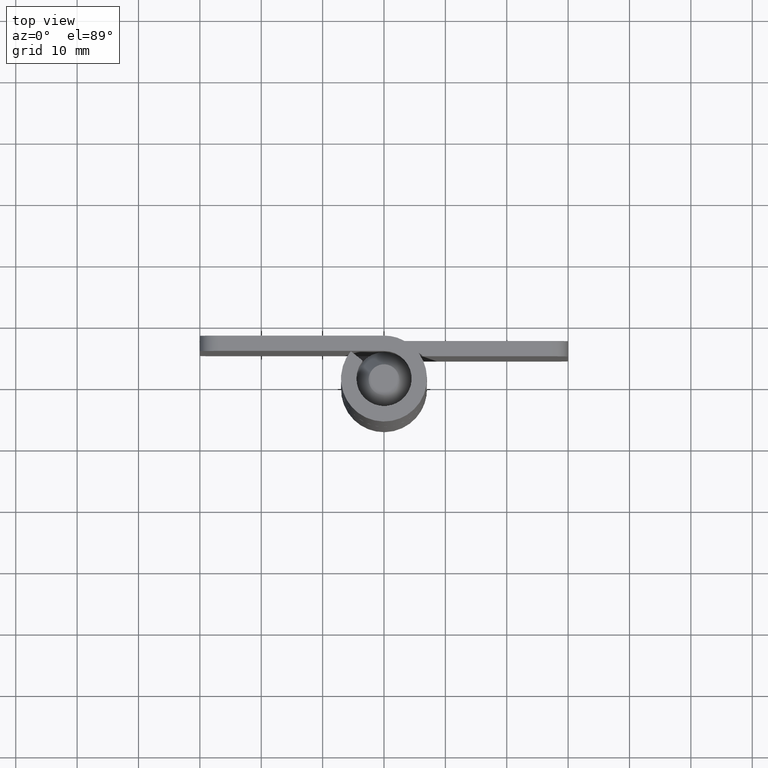
[diagram: clean part render]
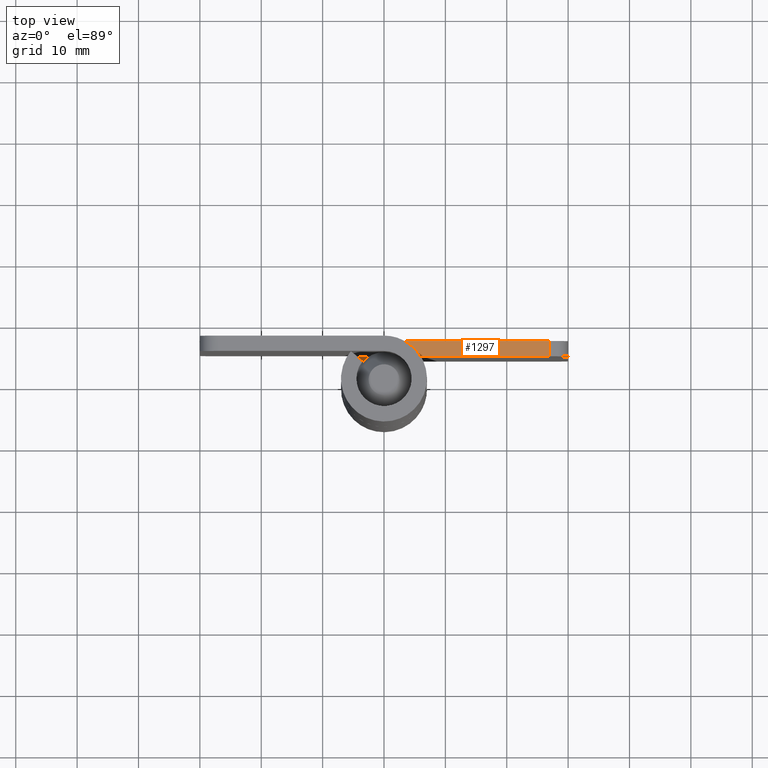
[diagram: same view with one face highlighted and labeled with its STEP entity id]
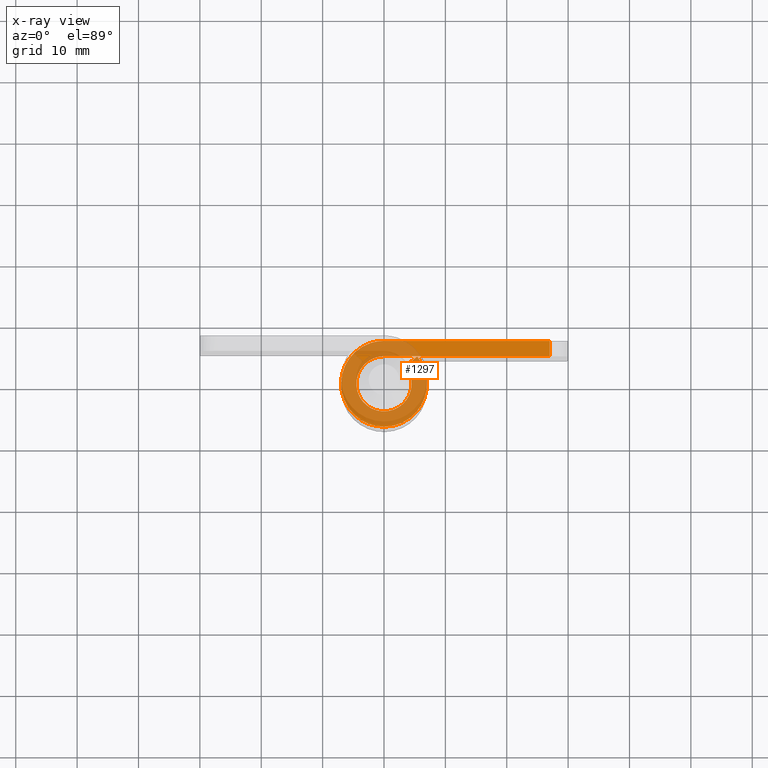
[diagram: x-ray of the same camera — body ghosted, the highlighted face saturated]
A machine part, top view. The second image highlights one B-rep face of the part: STEP entity #1297.
The next image is the same camera in x-ray: the body ghosted, the highlighted face saturated — about 59% of this face is hidden behind the body in this view.
In plain terms, the highlighted face is a freeform B-spline surface patch.
Its self-contained STEP definition (entity closure, byte-faithful):
#1050=CARTESIAN_POINT('',(27.0,7.0,50.0));
#1051=VERTEX_POINT('',#1050);
#1067=CARTESIAN_POINT('',(27.0,4.500000000000000,50.0));
#1068=VERTEX_POINT('',#1067);
#1069=CARTESIAN_POINT('',(27.0,4.500000000000000,50.0));
#1070=CARTESIAN_POINT('',(27.0,7.0,50.0));
#1071=QUASI_UNIFORM_CURVE('',1,(#1069,#1070),.UNSPECIFIED.,.F.,.U.);
#1072=EDGE_CURVE('',#1068,#1051,#1071,.T.);
#1228=CARTESIAN_POINT('',(-8.689261789277776,-7.675295667592425,50.0));
#1229=CARTESIAN_POINT('',(28.697870867901461,-7.675295667592425,50.0));
#1230=CARTESIAN_POINT('',(-8.689261789277776,7.698158374041653,50.0));
#1231=CARTESIAN_POINT('',(28.697870867901461,7.698158374041653,50.0));
#1232=B_SPLINE_SURFACE_WITH_KNOTS('',1,1,((#1228,#1230),(#1229,#1231)),.UNSPECIFIED.,.F.,.F.,.U.,(2,2),(2,2),(0.0,37.387132657179237),(0.0,15.373454041634080),.UNSPECIFIED.);
#1233=CARTESIAN_POINT('',(0.0,4.500000000000000,50.0));
#1234=VERTEX_POINT('',#1233);
#1235=CARTESIAN_POINT('',(27.0,4.500000000000000,50.0));
#1236=CARTESIAN_POINT('',(0.0,4.500000000000000,50.0));
#1237=QUASI_UNIFORM_CURVE('',1,(#1235,#1236),.UNSPECIFIED.,.F.,.U.);
#1238=EDGE_CURVE('',#1068,#1234,#1237,.T.);
#1239=ORIENTED_EDGE('',*,*,#1238,.F.);
#1240=ORIENTED_EDGE('',*,*,#1072,.T.);
#1241=CARTESIAN_POINT('',(0.0,7.0,50.0));
#1242=VERTEX_POINT('',#1241);
#1243=CARTESIAN_POINT('',(0.0,7.0,50.0));
#1244=CARTESIAN_POINT('',(27.0,7.0,50.0));
#1245=QUASI_UNIFORM_CURVE('',1,(#1243,#1244),.UNSPECIFIED.,.F.,.U.);
#1246=EDGE_CURVE('',#1242,#1051,#1245,.T.);
#1247=ORIENTED_EDGE('',*,*,#1246,.F.);
#1248=CARTESIAN_POINT('',(5.403471106612860,4.450000000000000,50.0));
#1249=VERTEX_POINT('',#1248);
#1250=CARTESIAN_POINT('',(5.403471106612857,4.450000000000004,50.0));
#1251=CARTESIAN_POINT('',(8.966569194039675,0.123461221249817,50.0));
#1252=CARTESIAN_POINT('',(5.523944036962744,-4.299539774964727,50.0));
#1253=CARTESIAN_POINT('',(2.081318879885813,-8.722540771179270,50.0));
#1254=CARTESIAN_POINT('',(-2.987473849257928,-6.330481814206563,50.0));
#1255=CARTESIAN_POINT('',(-8.056266578401672,-3.938422857233855,50.0));
#1256=CARTESIAN_POINT('',(-6.830569987176983,1.530788571383071,50.0));
#1257=CARTESIAN_POINT('',(-5.604873395952298,7.0,50.0));
#1258=CARTESIAN_POINT('',(0.0,7.0,50.0));
#1266=(BOUNDED_CURVE()B_SPLINE_CURVE(2,(#1250,#1251,#1252,#1253,#1254,#1255,#1256,#1257,#1258),.UNSPECIFIED.,.F.,.U.)B_SPLINE_CURVE_WITH_KNOTS((3,2,2,2,3),(0.0,0.250000000000000,0.500000000000000,0.750000000000000,1.0),.UNSPECIFIED.)CURVE()GEOMETRIC_REPRESENTATION_ITEM()RATIONAL_B_SPLINE_CURVE((1.0,0.780603638739326,1.0,0.780603638739326,1.0,0.780603638739326,1.0,0.780603638739326,1.0))REPRESENTATION_ITEM(''));
#1267=EDGE_CURVE('',#1249,#1242,#1266,.T.);
#1268=ORIENTED_EDGE('',*,*,#1267,.F.);
#1269=CARTESIAN_POINT('',(3.473659997108265,2.860714285714285,50.0));
#1270=VERTEX_POINT('',#1269);
#1271=CARTESIAN_POINT('',(3.473659997108265,2.860714285714285,50.0));
#1272=CARTESIAN_POINT('',(5.403471106612860,4.450000000000000,50.0));
#1273=QUASI_UNIFORM_CURVE('',1,(#1271,#1272),.UNSPECIFIED.,.F.,.U.);
#1274=EDGE_CURVE('',#1270,#1249,#1273,.T.);
#1275=ORIENTED_EDGE('',*,*,#1274,.F.);
#1276=CARTESIAN_POINT('',(3.473659997108265,2.860714285714288,50.0));
#1277=CARTESIAN_POINT('',(5.764223053311221,0.079367927946310,50.0));
#1278=CARTESIAN_POINT('',(3.551106880904621,-2.763989855334468,50.0));
#1279=CARTESIAN_POINT('',(1.337990708498023,-5.607347638615245,50.0));
#1280=CARTESIAN_POINT('',(-1.920518903094382,-4.069595451989933,50.0));
#1281=CARTESIAN_POINT('',(-5.179028514686786,-2.531843265364620,50.0));
#1282=CARTESIAN_POINT('',(-4.391080706042346,0.984078367317689,50.0));
#1283=CARTESIAN_POINT('',(-3.603132897397907,4.500000000000000,50.0));
#1284=CARTESIAN_POINT('',(0.0,4.500000000000000,50.0));
#1292=(BOUNDED_CURVE()B_SPLINE_CURVE(2,(#1276,#1277,#1278,#1279,#1280,#1281,#1282,#1283,#1284),.UNSPECIFIED.,.F.,.U.)B_SPLINE_CURVE_WITH_KNOTS((3,2,2,2,3),(0.0,0.250000000000000,0.500000000000000,0.750000000000000,1.0),.UNSPECIFIED.)CURVE()GEOMETRIC_REPRESENTATION_ITEM()RATIONAL_B_SPLINE_CURVE((1.0,0.780603638739326,1.0,0.780603638739326,1.0,0.780603638739326,1.0,0.780603638739326,1.0))REPRESENTATION_ITEM(''));
#1293=EDGE_CURVE('',#1270,#1234,#1292,.T.);
#1294=ORIENTED_EDGE('',*,*,#1293,.T.);
#1295=EDGE_LOOP('',(#1239,#1240,#1247,#1268,#1275,#1294));
#1296=FACE_OUTER_BOUND('',#1295,.T.);
#1297=ADVANCED_FACE('',(#1296),#1232,.T.);